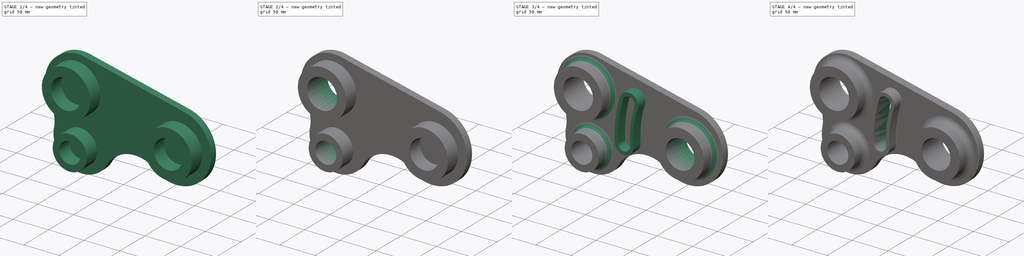
[diagram: build sequence overview — one tinted view per stage of 4, left to right]
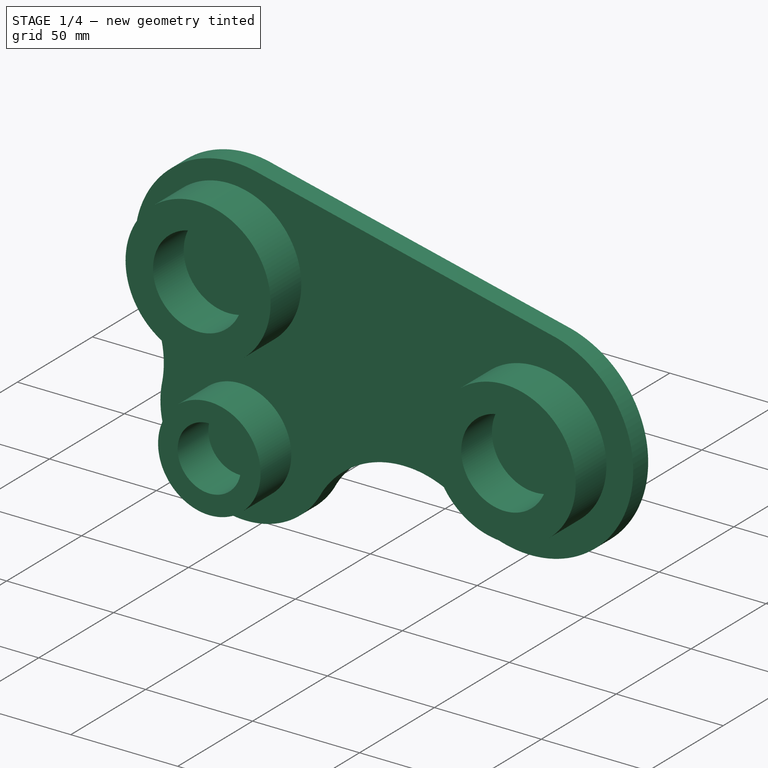
[diagram: stage 1 of 4 — iso view after this stage's code; geometry added in this stage tinted green]
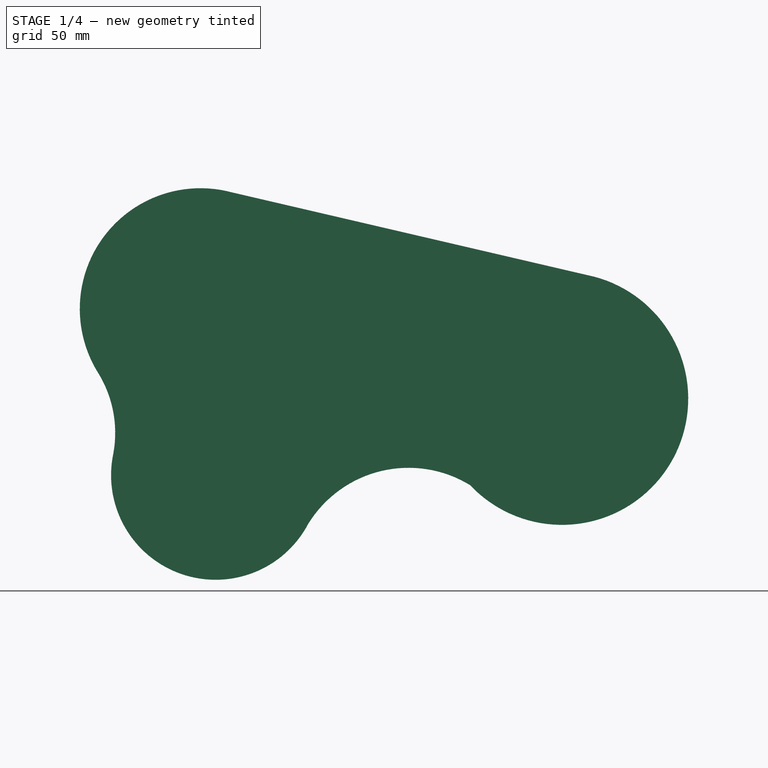
[diagram: stage 1 of 4 — front view after this stage's code; geometry added in this stage tinted green]
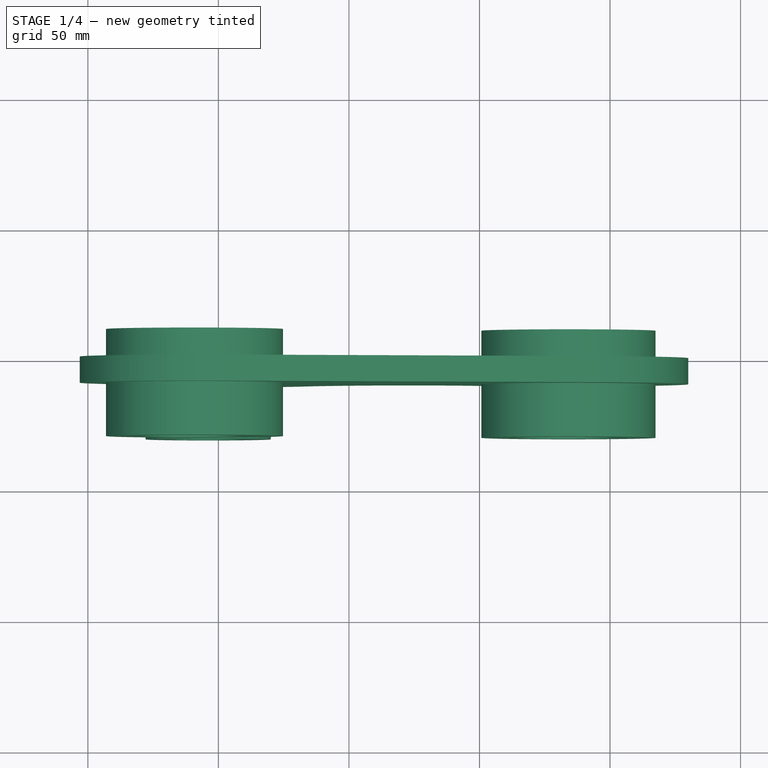
[diagram: stage 1 of 4 — top view after this stage's code; geometry added in this stage tinted green]
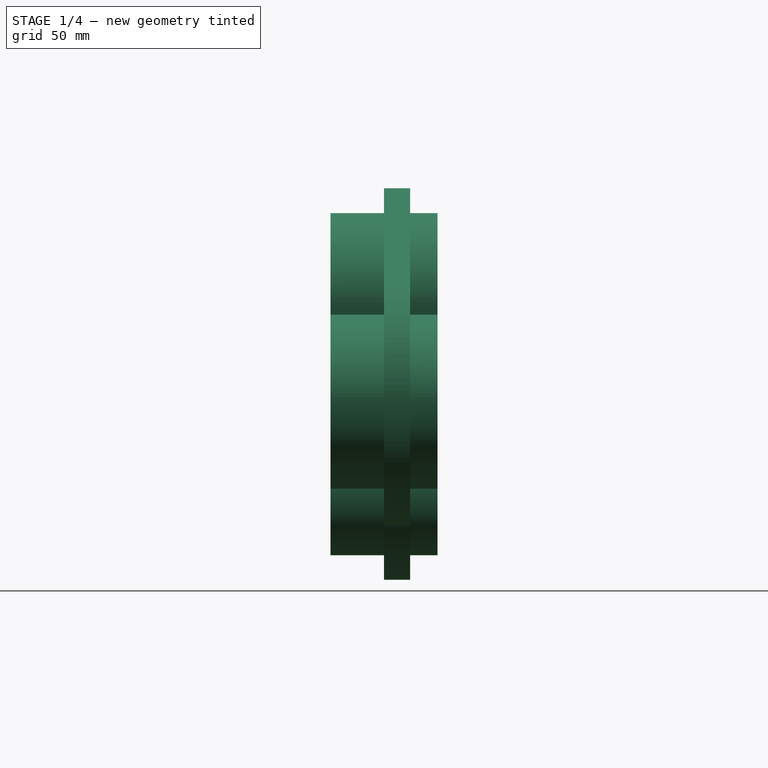
[diagram: stage 1 of 4 — right view after this stage's code; geometry added in this stage tinted green]
FCSTD DOCUMENT  (FreeCAD 0.21R33771 (Git))
Label: preklon
License: All rights reserved
LicenseURL: http://en.wikipedia.org/wiki/All_rights_reserved
objects: PartDesign::Pocket×4, Sketcher::SketchObject×3, PartDesign::Pad×3, PartDesign::Fillet×2, PartDesign::Body×1
note: 22 computed .brp shape members not serialized (recipe doc carries the construction recipe); baked Part::Feature solids carry a one-line shape summary decoded from their .brp

FEATURE [Sketcher::SketchObject] Sketch
  FullyConstrained = false
  MapMode = 5
  Placement = pos=(0,0,0) rot=(1,0,0;1.5708rad)
  Support = -> [XZ_Plane]
  sketch-geometry (6):
    g0: ArcOfCircle CenterX=-56.8615 CenterY=46.833 CenterZ=0 NormalX=0 NormalY=0 NormalZ=1 AngleXU=0 Radius=46.2317 StartAngle=1.3083 EndAngle=3.69788
    g1: ArcOfCircle CenterX=-51.0604 CenterY=-16.8677 CenterZ=0 NormalX=0 NormalY=0 NormalZ=1 AngleXU=0 Radius=40.0532 StartAngle=2.93313 EndAngle=5.7974
    g2: ArcOfCircle CenterX=81.6159 CenterY=12.4413 CenterZ=0 NormalX=0 NormalY=0 NormalZ=1 AngleXU=0 Radius=48.3325 StartAngle=3.89636 EndAngle=7.59086
    g3: ArcOfCircle CenterX=22.8361 CenterY=-59.1617 CenterZ=0 NormalX=0 NormalY=0 NormalZ=1 AngleXU=0 Radius=45.1344 StartAngle=1.02127 EndAngle=2.59154
    g4: ArcOfCircle CenterX=-133.206 CenterY=-0.664871 CenterZ=0 NormalX=0 NormalY=0 NormalZ=1 AngleXU=0 Radius=43.6822 StartAngle=6.10102 EndAngle=6.84001
    g5: LineSegment StartX=-44.8648 StartY=91.4811 StartZ=0 EndX=94.1872 EndY=59.1103 EndZ=0
  constraints (6):
    c: Coincident(g5,g2)
    c: Coincident(g0,g5)
    c: Coincident(g0,g4)
    c: Coincident(g4,g1)
    c: Coincident(g3,g1)
    c: Coincident(g3,g2)
FEATURE [PartDesign::Pad] Pad
  Direction = (0,-1,2e-16)
  Length = 10
  Length2 = 10
  Placement = pos=(0,0,0) rot=(1,0,0;1.5708rad)
  Profile = -> Sketch
  ReferenceAxis = -> Sketch [N_Axis]
  Refine = true
  Type = 0
FEATURE [Sketcher::SketchObject] Sketch001
  FullyConstrained = false
  MapMode = 5
  Placement = pos=(0,-10,2.2e-15) rot=(1,0,0;1.5708rad)
  Support = -> [Pad]
  sketch-geometry (6):
    g0: Circle CenterX=-59.1549 CenterY=49.635 CenterZ=0 NormalX=0 NormalY=0 NormalZ=1 AngleXU=0 Radius=33.905
    g1: Circle CenterX=-53.89 CenterY=-23.5819 CenterZ=0 NormalX=0 NormalY=0 NormalZ=1 AngleXU=0 Radius=23.9591
    g2: Circle CenterX=-53.89 CenterY=-23.5819 CenterZ=0 NormalX=0 NormalY=0 NormalZ=1 AngleXU=0 Radius=14.8064
    g3: Circle CenterX=-59.1549 CenterY=49.635 CenterZ=0 NormalX=0 NormalY=0 NormalZ=1 AngleXU=0 Radius=21.0439
    g4: Circle CenterX=84.0581 CenterY=11.2841 CenterZ=0 NormalX=0 NormalY=0 NormalZ=1 AngleXU=0 Radius=33.3501
    g5: Circle CenterX=84.0581 CenterY=11.2841 CenterZ=0 NormalX=0 NormalY=0 NormalZ=1 AngleXU=0 Radius=20.1565
  constraints (3):
    c: Coincident(g2,g1)
    c: Coincident(g3,g0)
    c: Coincident(g5,g4)
FEATURE [PartDesign::Pad] Pad001
  BaseFeature = -> Pad
  Direction = (0,-1,2e-16)
  Length = 41
  Length2 = 10
  Midplane = true
  Placement = pos=(0,0,0) rot=(1,0,0;1.5708rad)
  Profile = -> Sketch001
  ReferenceAxis = -> Sketch001 [N_Axis]
  Refine = true
  Type = 0
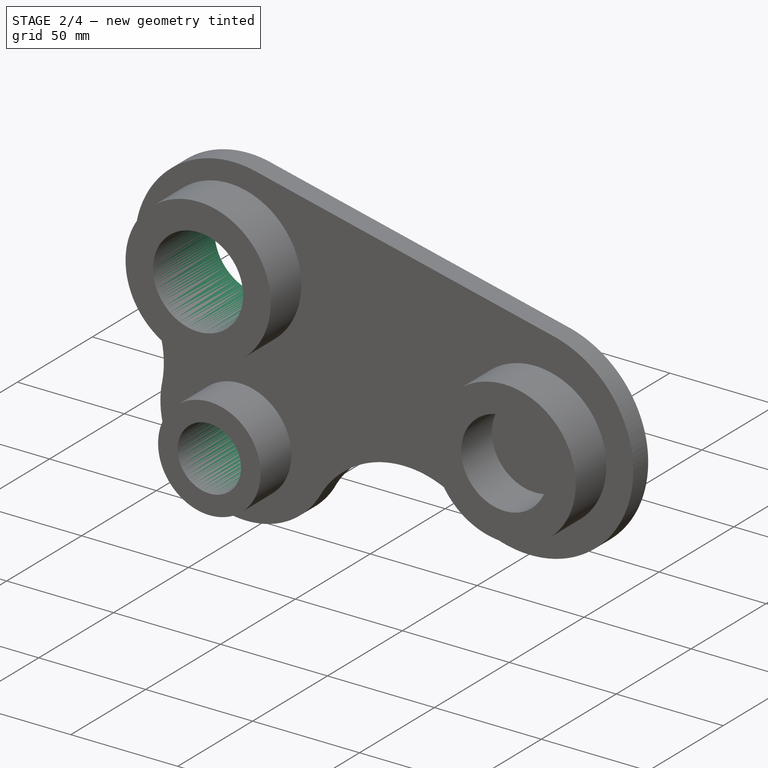
[diagram: stage 2 of 4 — iso view after this stage's code; geometry added in this stage tinted green]
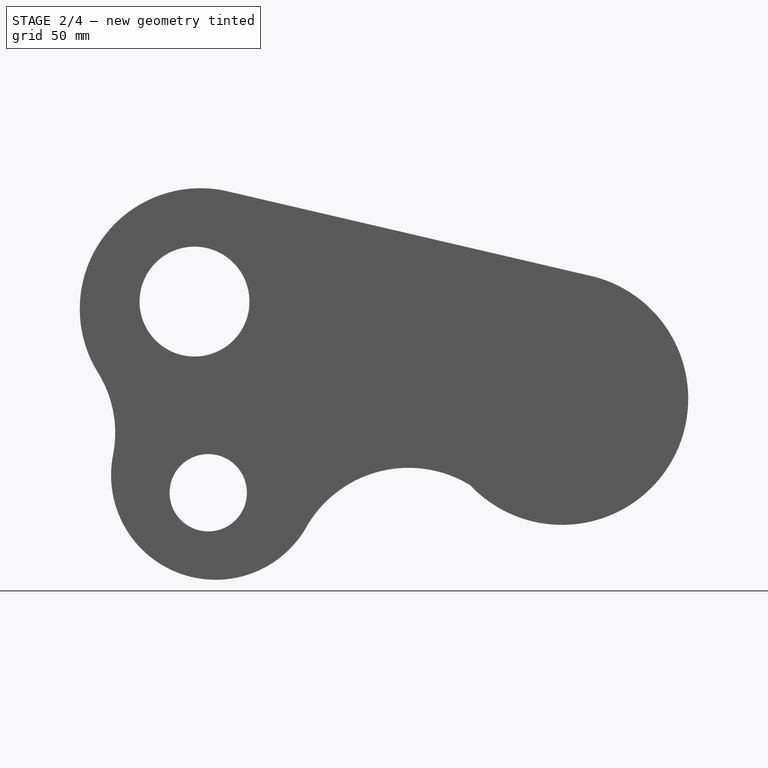
[diagram: stage 2 of 4 — front view after this stage's code; geometry added in this stage tinted green]
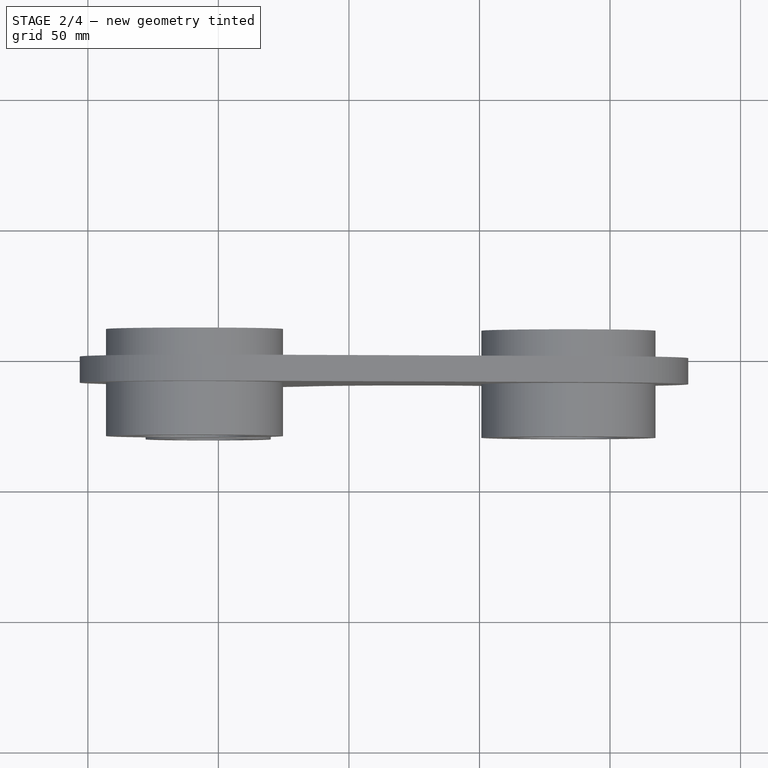
[diagram: stage 2 of 4 — top view after this stage's code; geometry added in this stage tinted green]
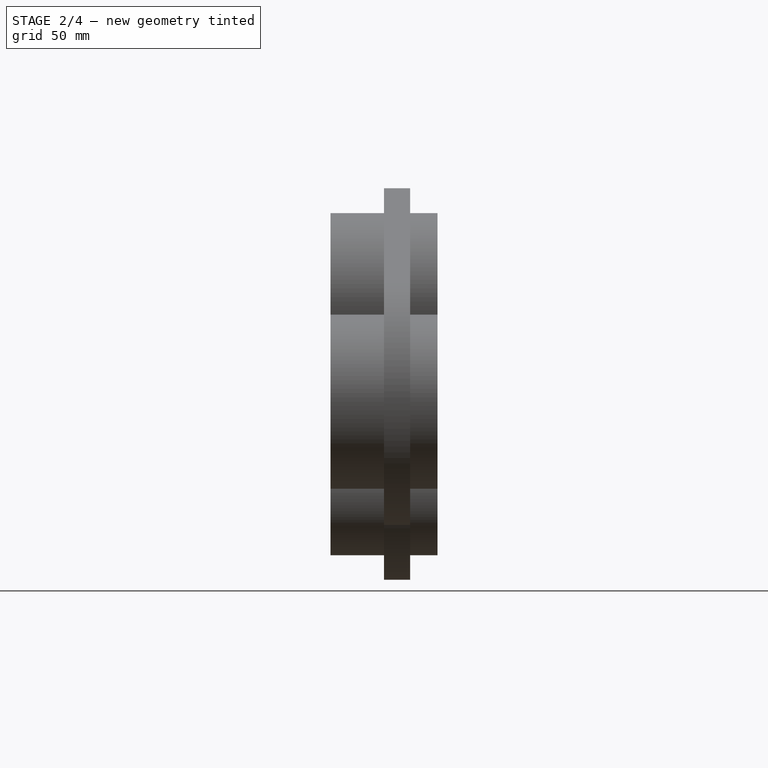
[diagram: stage 2 of 4 — right view after this stage's code; geometry added in this stage tinted green]
FEATURE [PartDesign::Pocket] Pocket
  BaseFeature = -> Pad001
  Direction = (0,-1,2e-16)
  Length = 5
  Length2 = 5
  Midplane = true
  Placement = pos=(0,0,0) rot=(1,0,0;1.5708rad)
  Profile = -> Pad001 [Edge41]
  Refine = true
  Type = 1
FEATURE [PartDesign::Pocket] Pocket001
  BaseFeature = -> Pocket
  Direction = (1e-16,-1,1e-16)
  Length = 5
  Length2 = 5
  Midplane = true
  Placement = pos=(0,0,0) rot=(1,0,0;1.5708rad)
  Profile = -> Pocket [Edge40]
  Refine = true
  Type = 1
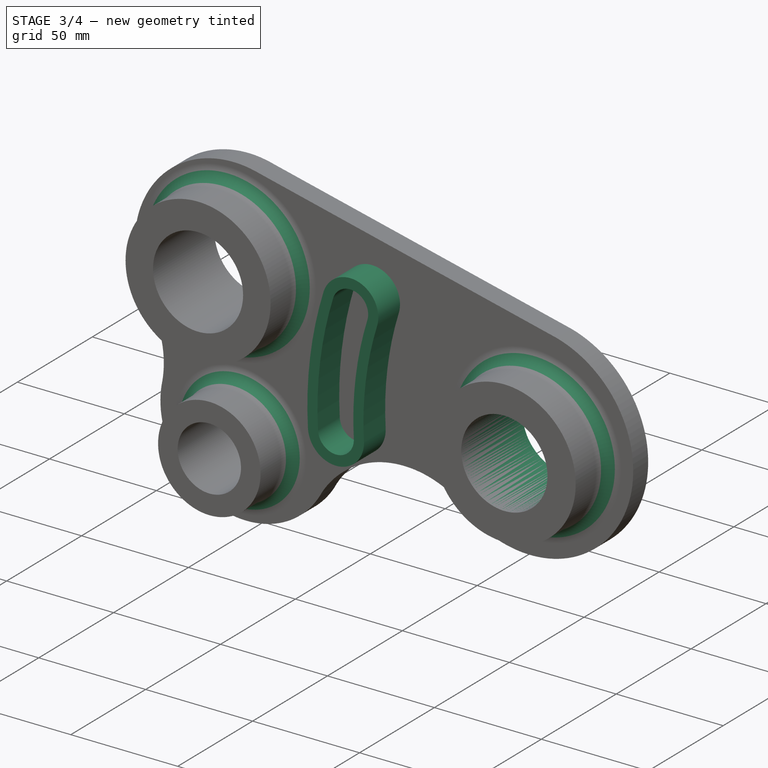
[diagram: stage 3 of 4 — iso view after this stage's code; geometry added in this stage tinted green]
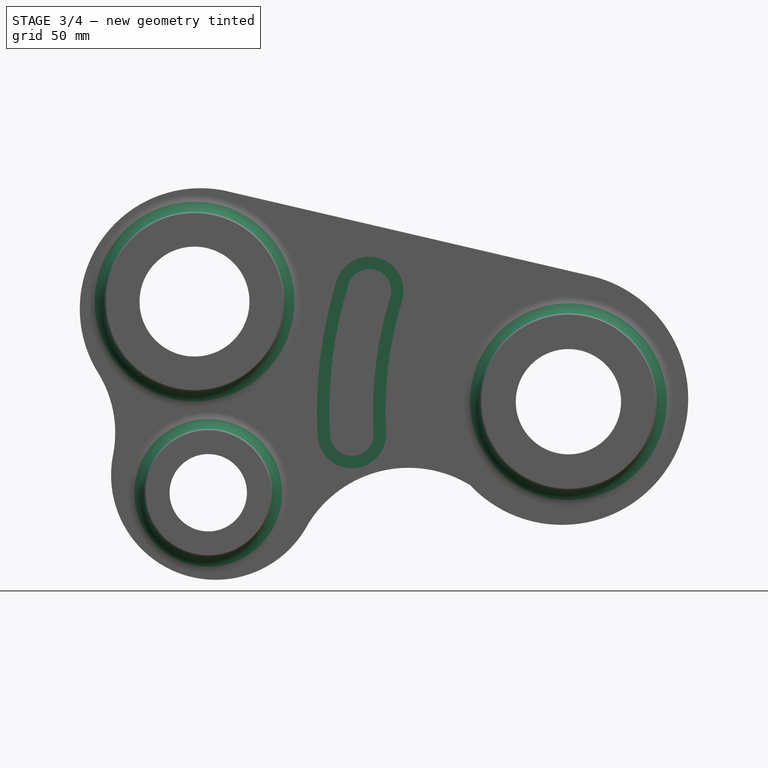
[diagram: stage 3 of 4 — front view after this stage's code; geometry added in this stage tinted green]
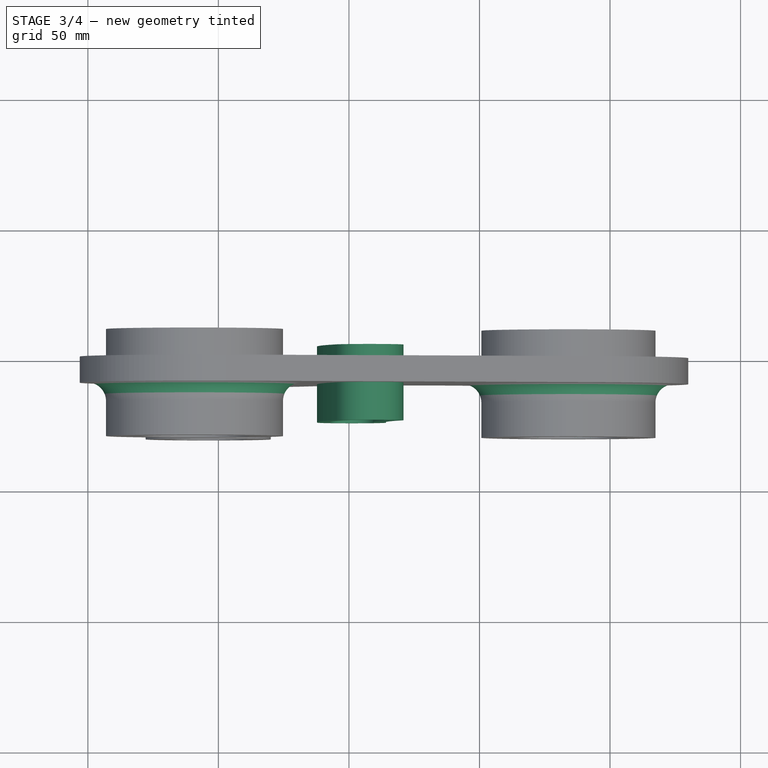
[diagram: stage 3 of 4 — top view after this stage's code; geometry added in this stage tinted green]
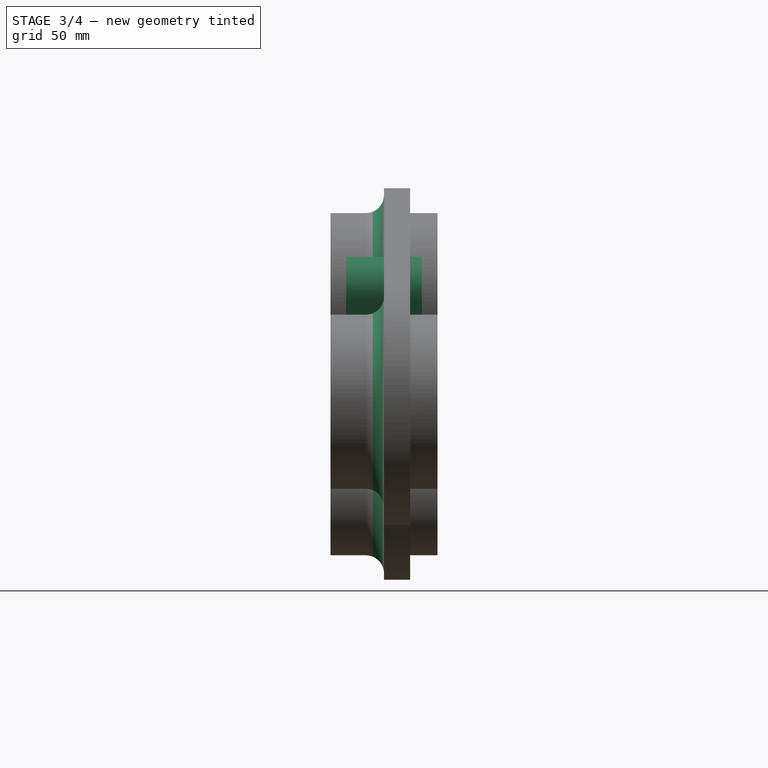
[diagram: stage 3 of 4 — right view after this stage's code; geometry added in this stage tinted green]
FEATURE [PartDesign::Pocket] Pocket002
  BaseFeature = -> Pocket001
  Direction = (0,-1,2e-16)
  Length = 5
  Length2 = 5
  Midplane = true
  Placement = pos=(0,0,0) rot=(1,0,0;1.5708rad)
  Profile = -> Pocket001 [Edge42]
  Refine = true
  Type = 1
FEATURE [PartDesign::Fillet] Fillet
  Base = -> Pocket002 [Edge22,Edge21,Edge20]
  BaseFeature = -> Pocket002
  Placement = pos=(0,0,0) rot=(1,0,0;1.5708rad)
  Radius = 7
  Refine = true
  SupportTransform = false
  UseAllEdges = false
FEATURE [Sketcher::SketchObject] Sketch002
  FullyConstrained = false
  MapMode = 5
  Placement = pos=(0,-10,2.2e-15) rot=(1,0,0;1.5708rad)
  Support = -> [Fillet]
  sketch-geometry (8):
    g0: ArcOfCircle CenterX=157.498 CenterY=7.62296 CenterZ=0 NormalX=0 NormalY=0 NormalZ=1 AngleXU=0 Radius=165.013 StartAngle=2.84285 EndAngle=3.19737
    g1: ArcOfCircle CenterX=157.498 CenterY=7.62296 CenterZ=0 NormalX=0 NormalY=0 NormalZ=1 AngleXU=0 Radius=148.267 StartAngle=2.84285 EndAngle=3.19737
    g2: ArcOfCircle CenterX=7.79622 CenterY=53.7253 CenterZ=0 NormalX=0 NormalY=0 NormalZ=1 AngleXU=0 Radius=8.37258 StartAngle=5.98444 EndAngle=9.12603
    g3: ArcOfCircle CenterX=1.10175 CenterY=-1.10986 CenterZ=0 NormalX=0 NormalY=0 NormalZ=1 AngleXU=0 Radius=8.37258 StartAngle=3.19737 EndAngle=6.33897
    g4: ArcOfCircle CenterX=7.79622 CenterY=53.7253 CenterZ=0 NormalX=0 NormalY=0 NormalZ=1 AngleXU=0 Radius=13.1077 StartAngle=5.98444 EndAngle=9.12603
    g5: ArcOfCircle CenterX=1.10175 CenterY=-1.10986 CenterZ=0 NormalX=0 NormalY=0 NormalZ=1 AngleXU=0 Radius=13.1077 StartAngle=3.19737 EndAngle=6.33897
    g6: ArcOfCircle CenterX=157.498 CenterY=7.62296 CenterZ=0 NormalX=0 NormalY=0 NormalZ=1 AngleXU=0 Radius=169.748 StartAngle=2.84285 EndAngle=3.19737
    g7: ArcOfCircle CenterX=157.498 CenterY=7.62296 CenterZ=0 NormalX=0 NormalY=0 NormalZ=1 AngleXU=0 Radius=143.532 StartAngle=2.84285 EndAngle=3.19737
  constraints (13):
    c: Coincident(g1,g0)
    c: Tangent(g2,g0) = -1.5708
    c: Tangent(g2,g1) = 1.5708
    c: Tangent(g3,g1) = 1.5708
    c: Tangent(g3,g0) = -1.5708
    c: Coincident(g4,g2)
    c: Coincident(g5,g3)
    c: Coincident(g6,g0)
    c: Coincident(g7,g0)
    c: Tangent(g4,g6) = -1.5708
    c: Coincident(g4,g7)
    c: Tangent(g5,g6) = -1.5708
    c: Tangent(g5,g7) = 1.5708
FEATURE [PartDesign::Pad] Pad002
  BaseFeature = -> Fillet
  Direction = (0,-1,2e-16)
  Length = 29
  Length2 = 10
  Midplane = true
  Placement = pos=(0,0,0) rot=(1,0,0;1.5708rad)
  Profile = -> Sketch002
  ReferenceAxis = -> Sketch002 [N_Axis]
  Refine = true
  Type = 0
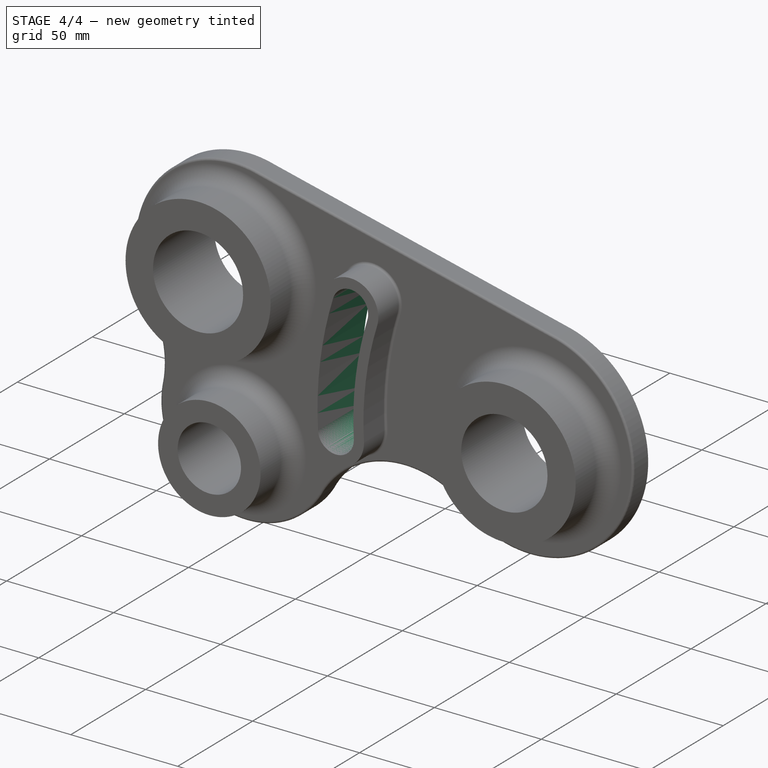
[diagram: stage 4 of 4 — iso view after this stage's code; geometry added in this stage tinted green]
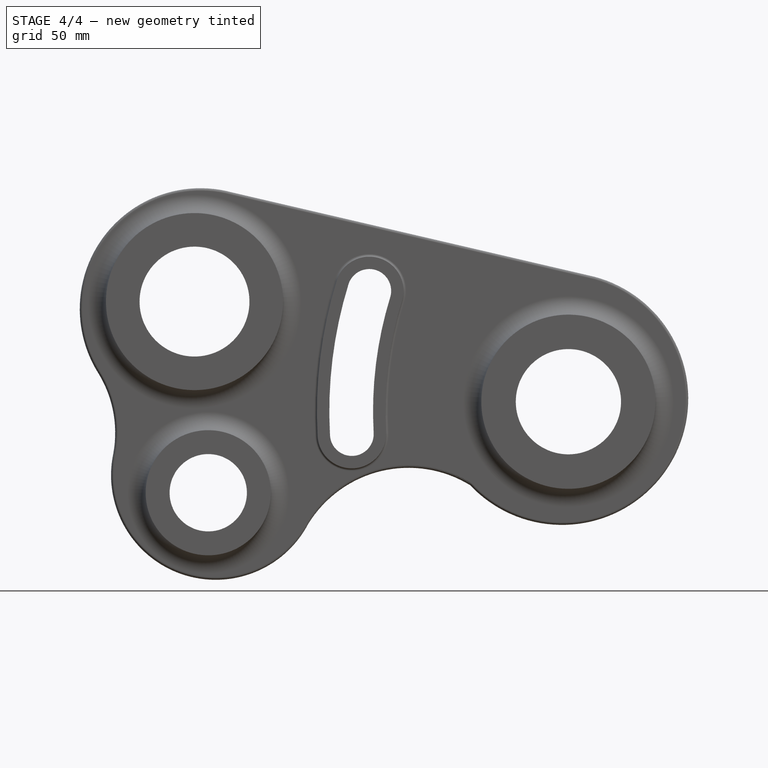
[diagram: stage 4 of 4 — front view after this stage's code; geometry added in this stage tinted green]
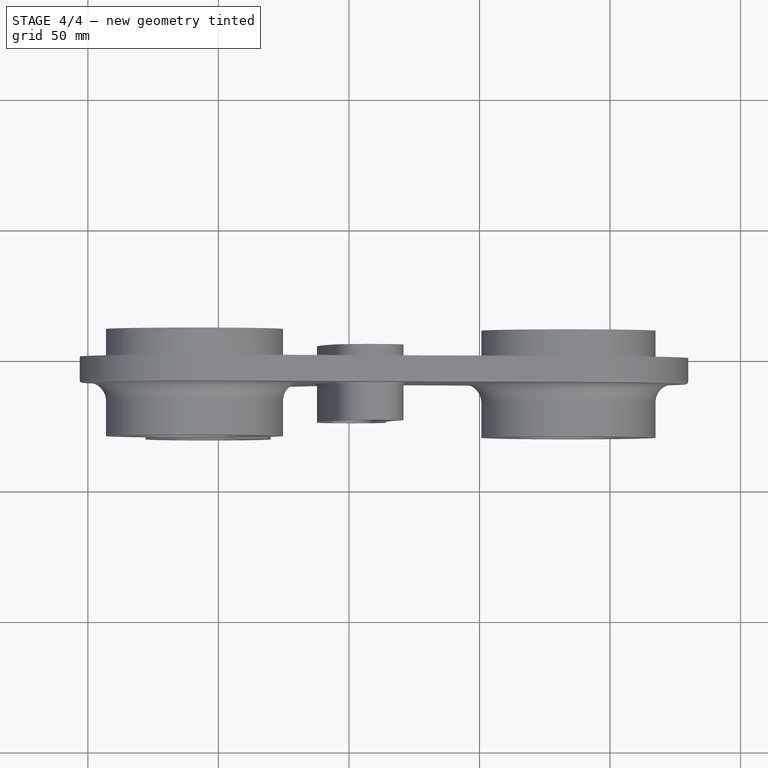
[diagram: stage 4 of 4 — top view after this stage's code; geometry added in this stage tinted green]
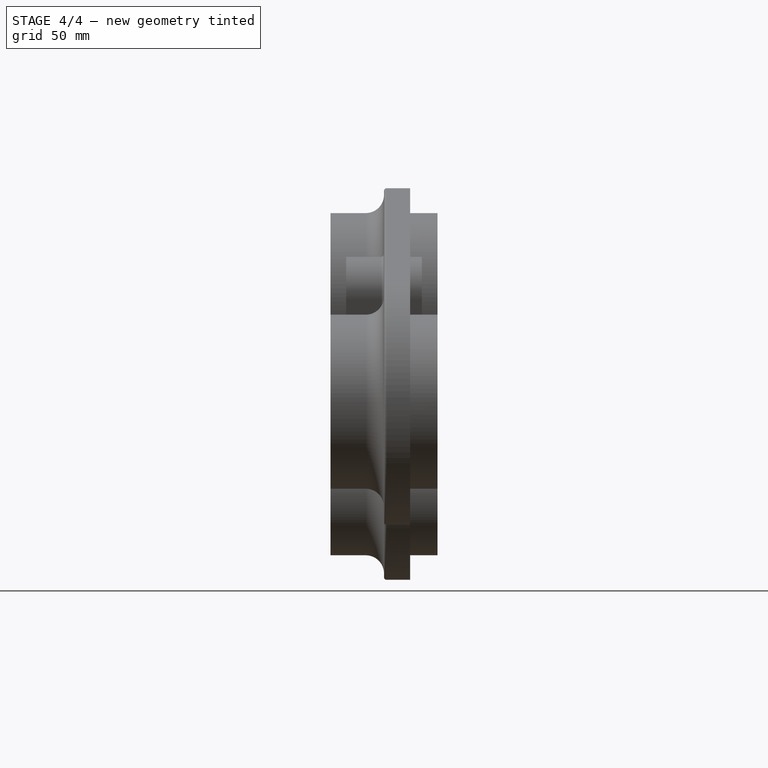
[diagram: stage 4 of 4 — right view after this stage's code; geometry added in this stage tinted green]
FEATURE [PartDesign::Pocket] Pocket003
  BaseFeature = -> Pad002
  Direction = (0,-1,2e-16)
  Length = 5
  Length2 = 5
  Midplane = true
  Placement = pos=(0,0,0) rot=(1,0,0;1.5708rad)
  Profile = -> Pad002 [Edge54,Edge51,Edge52,Edge53]
  Refine = true
  Type = 1
FEATURE [PartDesign::Fillet] Fillet001
  Base = -> Pocket003 [Face1]
  BaseFeature = -> Pocket003
  Placement = pos=(0,0,0) rot=(1,0,0;1.5708rad)
  Radius = 1
  Refine = true
  SupportTransform = false
  UseAllEdges = false
FEATURE [PartDesign::Body] Body
  Group = -> [Sketch,Pad,Sketch001,Pad001,Pocket,Pocket001,Pocket002,Fillet,Sketch002,Pad002,Pocket003,Fillet001]
  Origin = -> Origin
  Tip = -> Fillet001
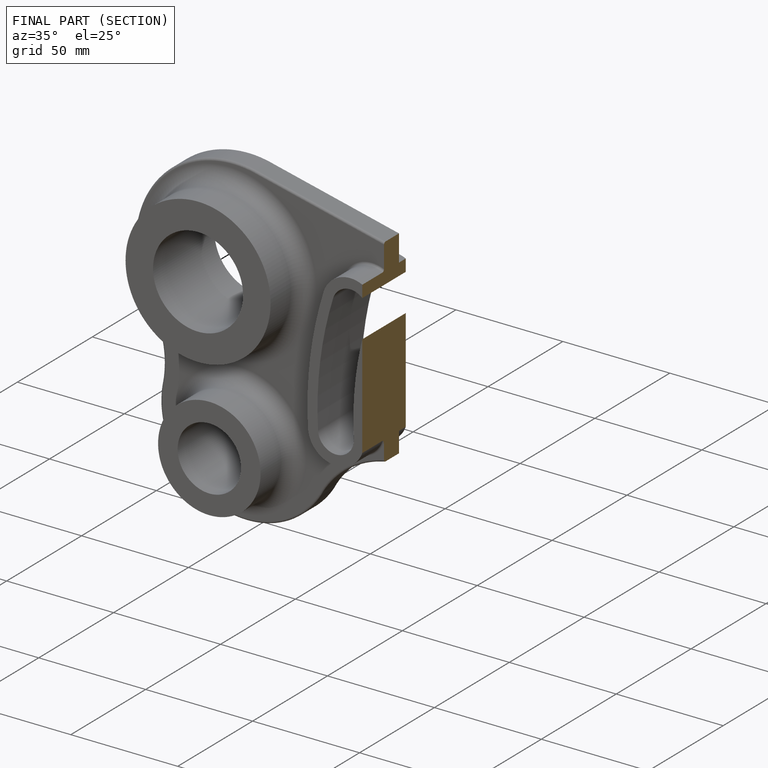
[diagram: finished part — half-section view (interior)]
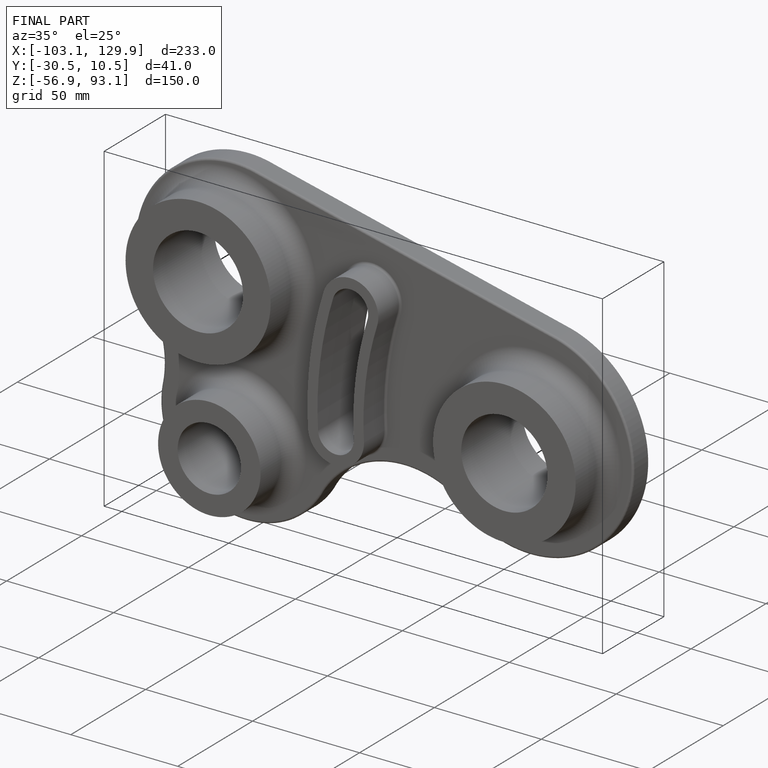
[diagram: finished part — iso view with bounding-box wireframe]
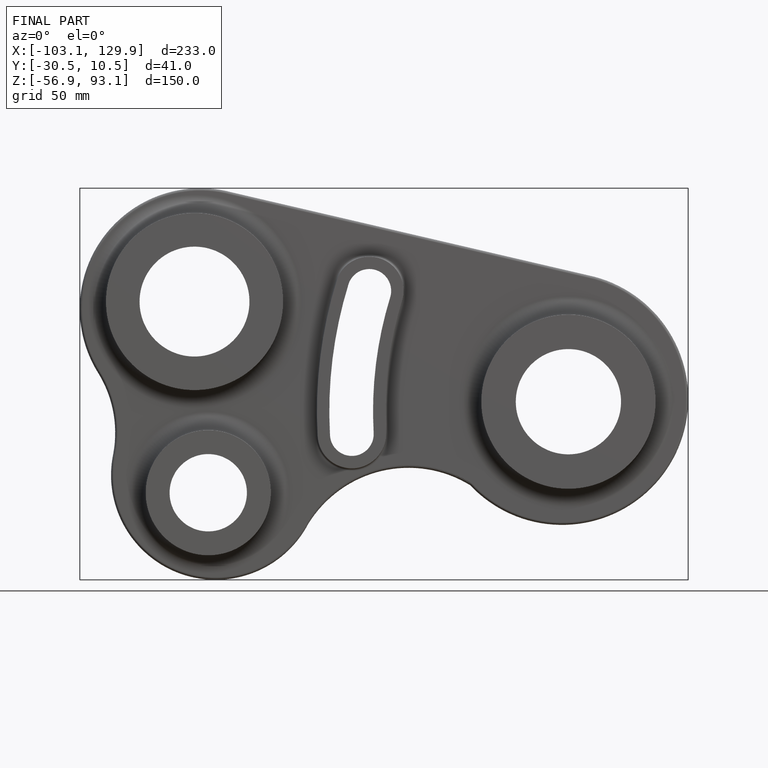
[diagram: finished part — front view with bounding-box wireframe]
